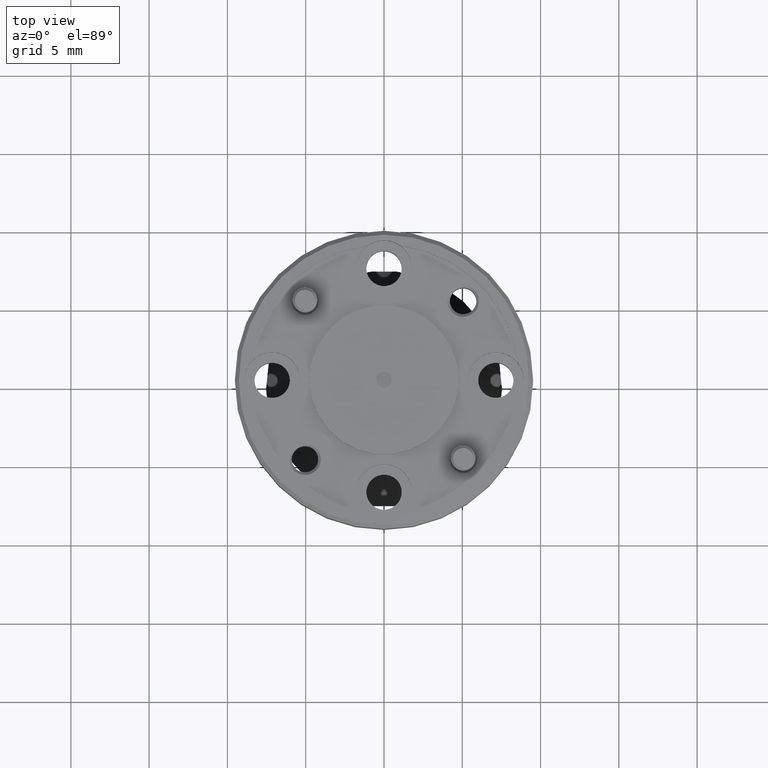
[diagram: clean part render]
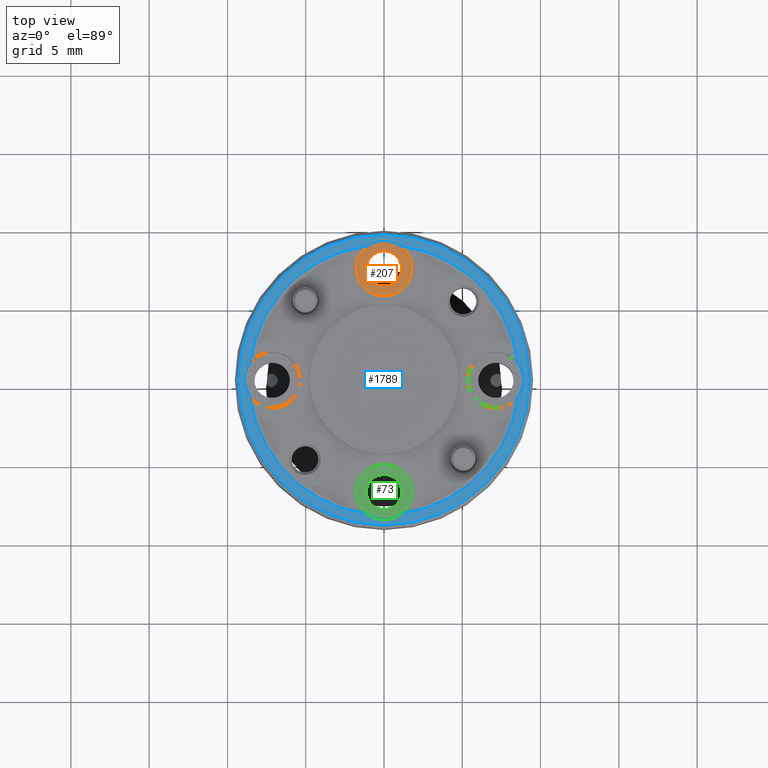
[diagram: same view with three faces highlighted in distinct colors, each labeled with its STEP entity id]
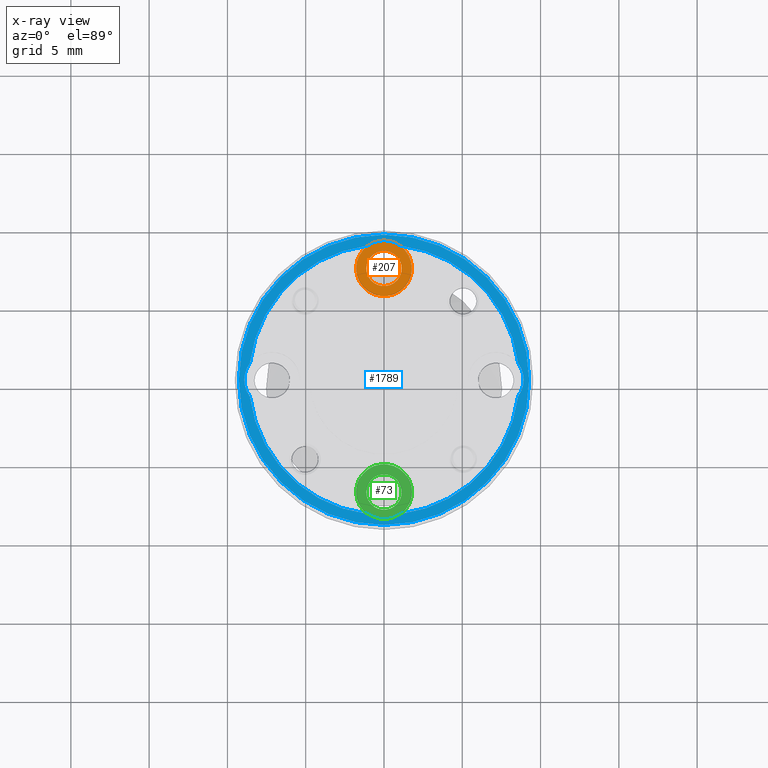
[diagram: x-ray of the same camera — body ghosted, the three highlighted faces saturated]
A machine part, top view with three faces highlighted in distinct colors.
The next image is the same camera in x-ray (body ghosted, the three faces saturated) — at least one of them is partly hidden behind the body in this view.
Their STEP definitions:

[orange] entity #207 — the highlighted planar face has unit normal (0, 0, 1).
#63 = VERTEX_POINT ( 'NONE', #811 ) ;
#98 = EDGE_CURVE ( 'NONE', #718, #1572, #862, .T. ) ;
#127 = PLANE ( 'NONE',  #293 ) ;
#153 = VERTEX_POINT ( 'NONE', #509 ) ;
#161 = AXIS2_PLACEMENT_3D ( 'NONE', #1980, #346, #1783 ) ;
#207 = ADVANCED_FACE ( 'NONE', ( #1001, #341 ), #127, .T. ) ;
#225 = EDGE_CURVE ( 'NONE', #153, #63, #254, .T. ) ;
#254 = CIRCLE ( 'NONE', #1884, 0.07000000000000000666 ) ;
#293 = AXIS2_PLACEMENT_3D ( 'NONE', #2306, #1379, #1016 ) ;
#341 = FACE_OUTER_BOUND ( 'NONE', #940, .T. ) ;
#343 = EDGE_LOOP ( 'NONE', ( #1308, #776 ) ) ;
#346 = DIRECTION ( 'NONE',  ( 0.000000000000000000, 0.000000000000000000, 1.000000000000000000 ) ) ;
#495 = DIRECTION ( 'NONE',  ( 0.000000000000000000, 0.000000000000000000, 1.000000000000000000 ) ) ;
#509 = CARTESIAN_POINT ( 'NONE',  ( 0.07000000000000000666, 0.2812500000000000555, -0.05999999999999999778 ) ) ;
#578 = CARTESIAN_POINT ( 'NONE',  ( -0.04449999999999997014, 0.2812500000000000555, -0.05999999999999999778 ) ) ;
#582 = EDGE_CURVE ( 'NONE', #63, #153, #2214, .T. ) ;
#647 = DIRECTION ( 'NONE',  ( 0.000000000000000000, 0.000000000000000000, 1.000000000000000000 ) ) ;
#718 = VERTEX_POINT ( 'NONE', #578 ) ;
#776 = ORIENTED_EDGE ( 'NONE', *, *, #98, .F. ) ;
#798 = CARTESIAN_POINT ( 'NONE',  ( 0.000000000000000000, 0.2812500000000000555, -0.05999999999999999778 ) ) ;
#811 = CARTESIAN_POINT ( 'NONE',  ( -0.07000000000000000666, 0.2812500000000000555, -0.05999999999999999778 ) ) ;
#850 = DIRECTION ( 'NONE',  ( 1.000000000000000000, 0.000000000000000000, 0.000000000000000000 ) ) ;
#861 = CARTESIAN_POINT ( 'NONE',  ( 0.04449999999999997014, 0.2812500000000000555, -0.05999999999999999778 ) ) ;
#862 = CIRCLE ( 'NONE', #2114, 0.04449999999999997014 ) ;
#940 = EDGE_LOOP ( 'NONE', ( #1481, #941 ) ) ;
#941 = ORIENTED_EDGE ( 'NONE', *, *, #582, .T. ) ;
#1001 = FACE_BOUND ( 'NONE', #343, .T. ) ;
#1016 = DIRECTION ( 'NONE',  ( 1.000000000000000000, 0.000000000000000000, -0.000000000000000000 ) ) ;
#1051 = CARTESIAN_POINT ( 'NONE',  ( 0.000000000000000000, 0.2812500000000000555, -0.05999999999999999778 ) ) ;
#1185 = DIRECTION ( 'NONE',  ( 1.000000000000000000, 0.000000000000000000, 0.000000000000000000 ) ) ;
#1308 = ORIENTED_EDGE ( 'NONE', *, *, #1595, .F. ) ;
#1379 = DIRECTION ( 'NONE',  ( 0.000000000000000000, 0.000000000000000000, 1.000000000000000000 ) ) ;
#1481 = ORIENTED_EDGE ( 'NONE', *, *, #225, .T. ) ;
#1572 = VERTEX_POINT ( 'NONE', #861 ) ;
#1577 = CARTESIAN_POINT ( 'NONE',  ( 0.000000000000000000, 0.2812500000000000555, -0.05999999999999999778 ) ) ;
#1587 = DIRECTION ( 'NONE',  ( 1.000000000000000000, 0.000000000000000000, 0.000000000000000000 ) ) ;
#1595 = EDGE_CURVE ( 'NONE', #1572, #718, #1941, .T. ) ;
#1781 = AXIS2_PLACEMENT_3D ( 'NONE', #1051, #1960, #850 ) ;
#1783 = DIRECTION ( 'NONE',  ( 1.000000000000000000, 0.000000000000000000, 0.000000000000000000 ) ) ;
#1884 = AXIS2_PLACEMENT_3D ( 'NONE', #1577, #495, #1587 ) ;
#1941 = CIRCLE ( 'NONE', #1781, 0.04449999999999997014 ) ;
#1960 = DIRECTION ( 'NONE',  ( 0.000000000000000000, 0.000000000000000000, 1.000000000000000000 ) ) ;
#1980 = CARTESIAN_POINT ( 'NONE',  ( 0.000000000000000000, 0.2812500000000000555, -0.05999999999999999778 ) ) ;
#2114 = AXIS2_PLACEMENT_3D ( 'NONE', #798, #647, #1185 ) ;
#2214 = CIRCLE ( 'NONE', #161, 0.07000000000000000666 ) ;
#2306 = CARTESIAN_POINT ( 'NONE',  ( 0.000000000000000000, 0.2812500000000000555, -0.05999999999999999778 ) ) ;

[blue] entity #1789 — the highlighted planar face has unit normal (0, -0, 1).
#8 = VERTEX_POINT ( 'NONE', #1160 ) ;
#22 = AXIS2_PLACEMENT_3D ( 'NONE', #203, #1862, #956 ) ;
#28 = DIRECTION ( 'NONE',  ( 1.000000000000000000, 0.000000000000000000, 0.000000000000000000 ) ) ;
#36 = CARTESIAN_POINT ( 'NONE',  ( 0.3400000000000000799, 0.000000000000000000, 0.000000000000000000 ) ) ;
#49 = VERTEX_POINT ( 'NONE', #950 ) ;
#50 = ORIENTED_EDGE ( 'NONE', *, *, #340, .T. ) ;
#55 = CARTESIAN_POINT ( 'NONE',  ( 0.000000000000000000, 0.000000000000000000, 0.000000000000000000 ) ) ;
#64 = AXIS2_PLACEMENT_3D ( 'NONE', #1837, #202, #28 ) ;
#120 = EDGE_LOOP ( 'NONE', ( #2356, #1784, #1697, #446, #980, #1999, #128, #731, #500, #1863 ) ) ;
#123 = CARTESIAN_POINT ( 'NONE',  ( 0.04176564826505151096, -0.3374250000000000305, 0.000000000000000000 ) ) ;
#128 = ORIENTED_EDGE ( 'NONE', *, *, #817, .F. ) ;
#186 = FACE_OUTER_BOUND ( 'NONE', #765, .T. ) ;
#191 = AXIS2_PLACEMENT_3D ( 'NONE', #36, #390, #1494 ) ;
#202 = DIRECTION ( 'NONE',  ( 0.000000000000000000, 0.000000000000000000, 1.000000000000000000 ) ) ;
#203 = CARTESIAN_POINT ( 'NONE',  ( -0.2812500000000000555, 0.000000000000000000, 0.000000000000000000 ) ) ;
#214 = CARTESIAN_POINT ( 'NONE',  ( -0.3374250000000000305, 0.04176564826505148320, 0.000000000000000000 ) ) ;
#228 = CIRCLE ( 'NONE', #834, 0.07000000000000000666 ) ;
#233 = EDGE_CURVE ( 'NONE', #1994, #1499, #2037, .T. ) ;
#237 = DIRECTION ( 'NONE',  ( 1.000000000000000000, 0.000000000000000000, 0.000000000000000000 ) ) ;
#255 = CARTESIAN_POINT ( 'NONE',  ( 0.2812500000000000555, 0.000000000000000000, 0.000000000000000000 ) ) ;
#268 = AXIS2_PLACEMENT_3D ( 'NONE', #1204, #1910, #1338 ) ;
#274 = VERTEX_POINT ( 'NONE', #382 ) ;
#279 = CARTESIAN_POINT ( 'NONE',  ( 0.3650000000000002132, 4.531193156845207927E-17, 0.000000000000000000 ) ) ;
#312 = VERTEX_POINT ( 'NONE', #214 ) ;
#340 = EDGE_CURVE ( 'NONE', #1225, #1852, #2226, .T. ) ;
#357 = EDGE_CURVE ( 'NONE', #681, #49, #787, .T. ) ;
#376 = CIRCLE ( 'NONE', #725, 0.3400000000000000799 ) ;
#380 = DIRECTION ( 'NONE',  ( 1.000000000000000000, 0.000000000000000000, 0.000000000000000000 ) ) ;
#382 = CARTESIAN_POINT ( 'NONE',  ( -0.3512500000000000622, 8.572527594031465794E-18, 0.000000000000000000 ) ) ;
#390 = DIRECTION ( 'NONE',  ( 0.000000000000000000, -0.000000000000000000, 1.000000000000000000 ) ) ;
#392 = DIRECTION ( 'NONE',  ( -0.000000000000000000, -0.000000000000000000, 1.000000000000000000 ) ) ;
#427 = CIRCLE ( 'NONE', #851, 0.3400000000000000799 ) ;
#429 = DIRECTION ( 'NONE',  ( -0.000000000000000000, -0.000000000000000000, 1.000000000000000000 ) ) ;
#446 = ORIENTED_EDGE ( 'NONE', *, *, #233, .F. ) ;
#473 = AXIS2_PLACEMENT_3D ( 'NONE', #1465, #392, #2187 ) ;
#500 = ORIENTED_EDGE ( 'NONE', *, *, #1436, .F. ) ;
#517 = CARTESIAN_POINT ( 'NONE',  ( -0.3650000000000002132, 0.000000000000000000, 0.000000000000000000 ) ) ;
#567 = CARTESIAN_POINT ( 'NONE',  ( 0.2812500000000000555, 0.000000000000000000, 0.000000000000000000 ) ) ;
#681 = VERTEX_POINT ( 'NONE', #1249 ) ;
#725 = AXIS2_PLACEMENT_3D ( 'NONE', #1385, #429, #1531 ) ;
#729 = VERTEX_POINT ( 'NONE', #2047 ) ;
#731 = ORIENTED_EDGE ( 'NONE', *, *, #357, .F. ) ;
#750 = DIRECTION ( 'NONE',  ( -0.000000000000000000, -0.000000000000000000, 1.000000000000000000 ) ) ;
#757 = FACE_BOUND ( 'NONE', #120, .T. ) ;
#765 = EDGE_LOOP ( 'NONE', ( #50, #1072 ) ) ;
#782 = CARTESIAN_POINT ( 'NONE',  ( -0.2812500000000000555, 0.000000000000000000, 0.000000000000000000 ) ) ;
#787 = CIRCLE ( 'NONE', #64, 0.07000000000000000666 ) ;
#793 = CIRCLE ( 'NONE', #1167, 0.07000000000000000666 ) ;
#817 = EDGE_CURVE ( 'NONE', #49, #312, #2025, .T. ) ;
#825 = AXIS2_PLACEMENT_3D ( 'NONE', #1433, #750, #1626 ) ;
#834 = AXIS2_PLACEMENT_3D ( 'NONE', #255, #2107, #2086 ) ;
#851 = AXIS2_PLACEMENT_3D ( 'NONE', #2210, #2069, #237 ) ;
#925 = EDGE_CURVE ( 'NONE', #274, #1994, #1022, .T. ) ;
#946 = DIRECTION ( 'NONE',  ( 1.000000000000000000, 0.000000000000000000, 0.000000000000000000 ) ) ;
#950 = CARTESIAN_POINT ( 'NONE',  ( -0.04176564826505151096, 0.3374250000000000305, 0.000000000000000000 ) ) ;
#956 = DIRECTION ( 'NONE',  ( 1.000000000000000000, 0.000000000000000000, 0.000000000000000000 ) ) ;
#980 = ORIENTED_EDGE ( 'NONE', *, *, #925, .F. ) ;
#983 = AXIS2_PLACEMENT_3D ( 'NONE', #2320, #1466, #1272 ) ;
#1003 = CIRCLE ( 'NONE', #1091, 0.07000000000000000666 ) ;
#1014 = EDGE_CURVE ( 'NONE', #1979, #2288, #427, .T. ) ;
#1022 = CIRCLE ( 'NONE', #22, 0.07000000000000000666 ) ;
#1072 = ORIENTED_EDGE ( 'NONE', *, *, #1254, .T. ) ;
#1091 = AXIS2_PLACEMENT_3D ( 'NONE', #567, #2012, #380 ) ;
#1160 = CARTESIAN_POINT ( 'NONE',  ( 0.3512500000000000622, 0.000000000000000000, 0.000000000000000000 ) ) ;
#1167 = AXIS2_PLACEMENT_3D ( 'NONE', #782, #1667, #1325 ) ;
#1204 = CARTESIAN_POINT ( 'NONE',  ( 0.000000000000000000, -0.2812500000000000555, 0.000000000000000000 ) ) ;
#1225 = VERTEX_POINT ( 'NONE', #517 ) ;
#1249 = CARTESIAN_POINT ( 'NONE',  ( 0.04176564826505151096, 0.3374250000000000305, 0.000000000000000000 ) ) ;
#1254 = EDGE_CURVE ( 'NONE', #1852, #1225, #2002, .T. ) ;
#1272 = DIRECTION ( 'NONE',  ( 1.000000000000000000, 0.000000000000000000, 0.000000000000000000 ) ) ;
#1279 = EDGE_CURVE ( 'NONE', #312, #274, #793, .T. ) ;
#1325 = DIRECTION ( 'NONE',  ( 1.000000000000000000, 0.000000000000000000, 0.000000000000000000 ) ) ;
#1338 = DIRECTION ( 'NONE',  ( 1.000000000000000000, 0.000000000000000000, 0.000000000000000000 ) ) ;
#1385 = CARTESIAN_POINT ( 'NONE',  ( 0.000000000000000000, 0.000000000000000000, 0.000000000000000000 ) ) ;
#1396 = AXIS2_PLACEMENT_3D ( 'NONE', #55, #1486, #946 ) ;
#1433 = CARTESIAN_POINT ( 'NONE',  ( 0.000000000000000000, 0.000000000000000000, 0.000000000000000000 ) ) ;
#1436 = EDGE_CURVE ( 'NONE', #729, #681, #376, .T. ) ;
#1465 = CARTESIAN_POINT ( 'NONE',  ( 0.000000000000000000, 0.000000000000000000, 0.000000000000000000 ) ) ;
#1466 = DIRECTION ( 'NONE',  ( -0.000000000000000000, -0.000000000000000000, 1.000000000000000000 ) ) ;
#1471 = EDGE_CURVE ( 'NONE', #1499, #1979, #2282, .T. ) ;
#1486 = DIRECTION ( 'NONE',  ( -0.000000000000000000, -0.000000000000000000, 1.000000000000000000 ) ) ;
#1494 = DIRECTION ( 'NONE',  ( 1.000000000000000000, 0.000000000000000000, 0.000000000000000000 ) ) ;
#1499 = VERTEX_POINT ( 'NONE', #1972 ) ;
#1531 = DIRECTION ( 'NONE',  ( 1.000000000000000000, 0.000000000000000000, 0.000000000000000000 ) ) ;
#1626 = DIRECTION ( 'NONE',  ( 1.000000000000000000, 0.000000000000000000, 0.000000000000000000 ) ) ;
#1655 = PLANE ( 'NONE',  #191 ) ;
#1667 = DIRECTION ( 'NONE',  ( 0.000000000000000000, 0.000000000000000000, 1.000000000000000000 ) ) ;
#1697 = ORIENTED_EDGE ( 'NONE', *, *, #1471, .F. ) ;
#1758 = CARTESIAN_POINT ( 'NONE',  ( -0.3374250000000000305, -0.04176564826505148320, 0.000000000000000000 ) ) ;
#1766 = EDGE_CURVE ( 'NONE', #2288, #8, #1003, .T. ) ;
#1784 = ORIENTED_EDGE ( 'NONE', *, *, #1014, .F. ) ;
#1789 = ADVANCED_FACE ( 'NONE', ( #186, #757 ), #1655, .T. ) ;
#1812 = EDGE_CURVE ( 'NONE', #8, #729, #228, .T. ) ;
#1837 = CARTESIAN_POINT ( 'NONE',  ( 0.000000000000000000, 0.2812500000000000555, 0.000000000000000000 ) ) ;
#1852 = VERTEX_POINT ( 'NONE', #279 ) ;
#1862 = DIRECTION ( 'NONE',  ( 0.000000000000000000, 0.000000000000000000, 1.000000000000000000 ) ) ;
#1863 = ORIENTED_EDGE ( 'NONE', *, *, #1812, .F. ) ;
#1910 = DIRECTION ( 'NONE',  ( 0.000000000000000000, 0.000000000000000000, 1.000000000000000000 ) ) ;
#1972 = CARTESIAN_POINT ( 'NONE',  ( -0.04176564826505151096, -0.3374250000000000305, 0.000000000000000000 ) ) ;
#1979 = VERTEX_POINT ( 'NONE', #123 ) ;
#1994 = VERTEX_POINT ( 'NONE', #1758 ) ;
#1999 = ORIENTED_EDGE ( 'NONE', *, *, #1279, .F. ) ;
#2002 = CIRCLE ( 'NONE', #1396, 0.3650000000000002132 ) ;
#2012 = DIRECTION ( 'NONE',  ( 0.000000000000000000, 0.000000000000000000, 1.000000000000000000 ) ) ;
#2025 = CIRCLE ( 'NONE', #983, 0.3400000000000000799 ) ;
#2037 = CIRCLE ( 'NONE', #825, 0.3400000000000000799 ) ;
#2047 = CARTESIAN_POINT ( 'NONE',  ( 0.3374250000000000305, 0.04176564826505148320, 0.000000000000000000 ) ) ;
#2069 = DIRECTION ( 'NONE',  ( -0.000000000000000000, -0.000000000000000000, 1.000000000000000000 ) ) ;
#2086 = DIRECTION ( 'NONE',  ( 1.000000000000000000, 0.000000000000000000, 0.000000000000000000 ) ) ;
#2107 = DIRECTION ( 'NONE',  ( 0.000000000000000000, 0.000000000000000000, 1.000000000000000000 ) ) ;
#2163 = CARTESIAN_POINT ( 'NONE',  ( 0.3374250000000000305, -0.04176564826505148320, 0.000000000000000000 ) ) ;
#2187 = DIRECTION ( 'NONE',  ( 1.000000000000000000, 0.000000000000000000, 0.000000000000000000 ) ) ;
#2210 = CARTESIAN_POINT ( 'NONE',  ( 0.000000000000000000, 0.000000000000000000, 0.000000000000000000 ) ) ;
#2226 = CIRCLE ( 'NONE', #473, 0.3650000000000002132 ) ;
#2282 = CIRCLE ( 'NONE', #268, 0.07000000000000000666 ) ;
#2288 = VERTEX_POINT ( 'NONE', #2163 ) ;
#2320 = CARTESIAN_POINT ( 'NONE',  ( 0.000000000000000000, 0.000000000000000000, 0.000000000000000000 ) ) ;
#2356 = ORIENTED_EDGE ( 'NONE', *, *, #1766, .F. ) ;

[green] entity #73 — the highlighted planar face has unit normal (0, 0, 1).
#60 = DIRECTION ( 'NONE',  ( 1.000000000000000000, 0.000000000000000000, -0.000000000000000000 ) ) ;
#73 = ADVANCED_FACE ( 'NONE', ( #408, #1134 ), #968, .T. ) ;
#262 = DIRECTION ( 'NONE',  ( 0.000000000000000000, 0.000000000000000000, 1.000000000000000000 ) ) ;
#303 = AXIS2_PLACEMENT_3D ( 'NONE', #1717, #1881, #1349 ) ;
#316 = CARTESIAN_POINT ( 'NONE',  ( 0.000000000000000000, -0.2812500000000000555, -0.05999999999999999778 ) ) ;
#366 = CIRCLE ( 'NONE', #2157, 0.07000000000000000666 ) ;
#375 = ORIENTED_EDGE ( 'NONE', *, *, #2026, .T. ) ;
#408 = FACE_BOUND ( 'NONE', #1333, .T. ) ;
#549 = VERTEX_POINT ( 'NONE', #607 ) ;
#607 = CARTESIAN_POINT ( 'NONE',  ( -0.04449999999999997014, -0.2812500000000000555, -0.05999999999999999778 ) ) ;
#675 = ORIENTED_EDGE ( 'NONE', *, *, #1895, .F. ) ;
#700 = CARTESIAN_POINT ( 'NONE',  ( 0.000000000000000000, -0.2812500000000000555, -0.05999999999999999778 ) ) ;
#736 = DIRECTION ( 'NONE',  ( 0.000000000000000000, 0.000000000000000000, 1.000000000000000000 ) ) ;
#826 = CARTESIAN_POINT ( 'NONE',  ( -0.07000000000000000666, -0.2812500000000000555, -0.05999999999999999778 ) ) ;
#867 = CIRCLE ( 'NONE', #303, 0.04449999999999997014 ) ;
#968 = PLANE ( 'NONE',  #1693 ) ;
#998 = AXIS2_PLACEMENT_3D ( 'NONE', #700, #736, #1421 ) ;
#1094 = CARTESIAN_POINT ( 'NONE',  ( 0.000000000000000000, -0.2812500000000000555, -0.05999999999999999778 ) ) ;
#1134 = FACE_OUTER_BOUND ( 'NONE', #1234, .T. ) ;
#1143 = DIRECTION ( 'NONE',  ( 1.000000000000000000, 0.000000000000000000, 0.000000000000000000 ) ) ;
#1201 = DIRECTION ( 'NONE',  ( 1.000000000000000000, 0.000000000000000000, 0.000000000000000000 ) ) ;
#1219 = EDGE_CURVE ( 'NONE', #1800, #549, #2198, .T. ) ;
#1234 = EDGE_LOOP ( 'NONE', ( #375, #1289 ) ) ;
#1288 = EDGE_CURVE ( 'NONE', #1814, #2353, #366, .T. ) ;
#1289 = ORIENTED_EDGE ( 'NONE', *, *, #1288, .T. ) ;
#1333 = EDGE_LOOP ( 'NONE', ( #2203, #675 ) ) ;
#1349 = DIRECTION ( 'NONE',  ( 1.000000000000000000, 0.000000000000000000, 0.000000000000000000 ) ) ;
#1354 = CARTESIAN_POINT ( 'NONE',  ( 0.000000000000000000, -0.2812500000000000555, -0.05999999999999999778 ) ) ;
#1421 = DIRECTION ( 'NONE',  ( 1.000000000000000000, 0.000000000000000000, 0.000000000000000000 ) ) ;
#1474 = DIRECTION ( 'NONE',  ( 0.000000000000000000, 0.000000000000000000, 1.000000000000000000 ) ) ;
#1616 = DIRECTION ( 'NONE',  ( 0.000000000000000000, 0.000000000000000000, 1.000000000000000000 ) ) ;
#1665 = AXIS2_PLACEMENT_3D ( 'NONE', #316, #1616, #1201 ) ;
#1693 = AXIS2_PLACEMENT_3D ( 'NONE', #1354, #262, #60 ) ;
#1717 = CARTESIAN_POINT ( 'NONE',  ( 0.000000000000000000, -0.2812500000000000555, -0.05999999999999999778 ) ) ;
#1800 = VERTEX_POINT ( 'NONE', #2098 ) ;
#1814 = VERTEX_POINT ( 'NONE', #826 ) ;
#1854 = CIRCLE ( 'NONE', #1665, 0.07000000000000000666 ) ;
#1881 = DIRECTION ( 'NONE',  ( 0.000000000000000000, 0.000000000000000000, 1.000000000000000000 ) ) ;
#1895 = EDGE_CURVE ( 'NONE', #549, #1800, #867, .T. ) ;
#2026 = EDGE_CURVE ( 'NONE', #2353, #1814, #1854, .T. ) ;
#2098 = CARTESIAN_POINT ( 'NONE',  ( 0.04449999999999997014, -0.2812500000000000555, -0.05999999999999999778 ) ) ;
#2157 = AXIS2_PLACEMENT_3D ( 'NONE', #1094, #1474, #1143 ) ;
#2198 = CIRCLE ( 'NONE', #998, 0.04449999999999997014 ) ;
#2203 = ORIENTED_EDGE ( 'NONE', *, *, #1219, .F. ) ;
#2256 = CARTESIAN_POINT ( 'NONE',  ( 0.07000000000000000666, -0.2812500000000000555, -0.05999999999999999778 ) ) ;
#2353 = VERTEX_POINT ( 'NONE', #2256 ) ;